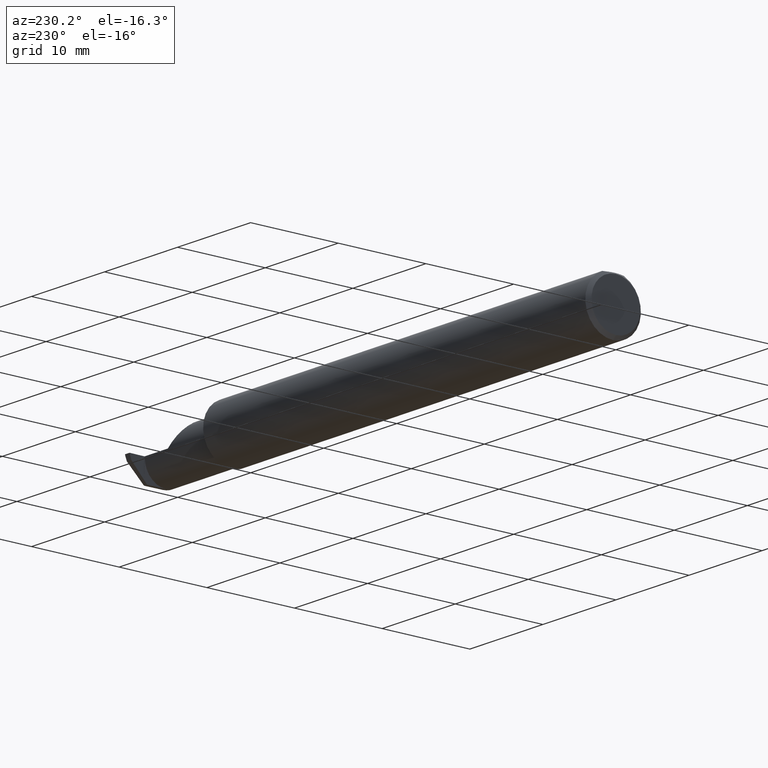
[diagram: clean part render]
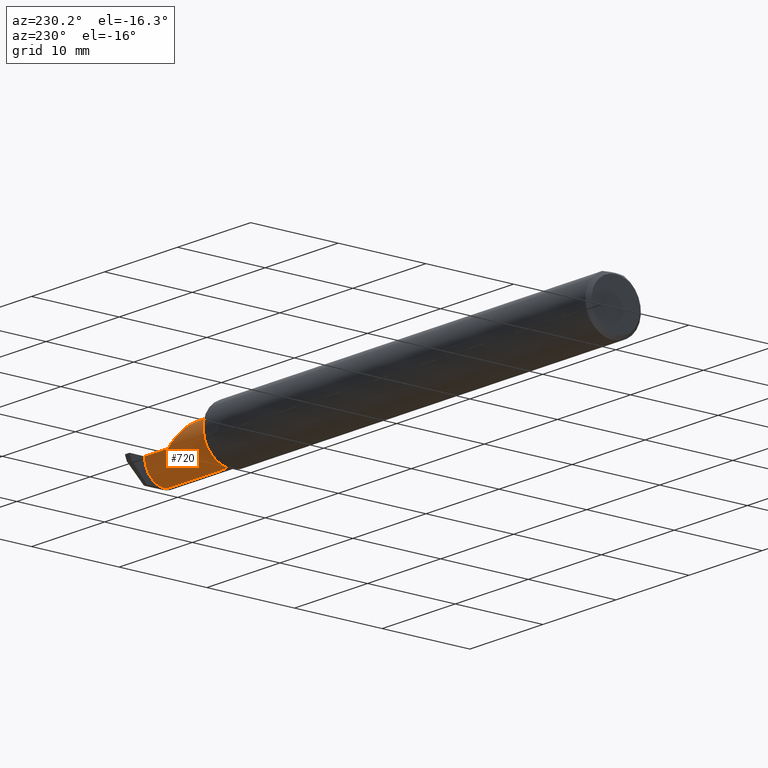
[diagram: same view with one face highlighted and labeled with its STEP entity id]
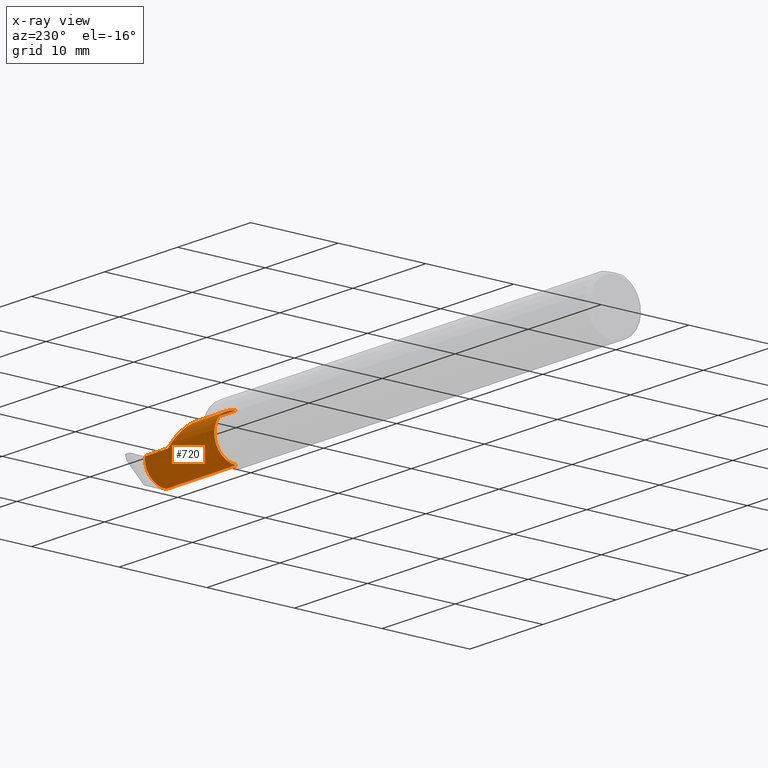
[diagram: x-ray of the same camera — body ghosted, the highlighted face saturated]
A machine part, auxiliary view. The second image highlights one B-rep face of the part: STEP entity #720.
The next image is the same camera in x-ray: the body ghosted, the highlighted face saturated — about 1% of this face is hidden behind the body in this view.
In plain terms, the highlighted cylindrical surface (edge-blend (fillet) strip) has radius 2.4892 mm, axis along (-1, -0, -0).
Its self-contained STEP definition (entity closure, byte-faithful):
#12 = CARTESIAN_POINT ( 'NONE',  ( 2.075000000000000178, -0.04385000000000001397, 0.09800000000000000377 ) ) ;
#17 = DIRECTION ( 'NONE',  ( 0.000000000000000000, 0.000000000000000000, 1.000000000000000000 ) ) ;
#21 = CARTESIAN_POINT ( 'NONE',  ( 2.075000000000000178, 0.05414999999999998981, 5.204748896376247001E-17 ) ) ;
#31 = CARTESIAN_POINT ( 'NONE',  ( 2.479353376795600639, -0.04385000000000004172, -0.09799999999999998990 ) ) ;
#38 = EDGE_CURVE ( 'NONE', #586, #433, #462, .T. ) ;
#39 = CARTESIAN_POINT ( 'NONE',  ( 2.100000000000000089, -0.04385000000000001397, 0.09800000000000000377 ) ) ;
#69 = DIRECTION ( 'NONE',  ( 0.000000000000000000, 0.000000000000000000, 1.000000000000000000 ) ) ;
#75 = DIRECTION ( 'NONE',  ( -1.000000000000000000, -0.000000000000000000, -0.000000000000000000 ) ) ;
#101 = VERTEX_POINT ( 'NONE', #466 ) ;
#155 = AXIS2_PLACEMENT_3D ( 'NONE', #548, #535, #415 ) ;
#156 = CARTESIAN_POINT ( 'NONE',  ( 2.252000000000000668, -0.04385000000000001397, 0.09800000000000000377 ) ) ;
#176 = VERTEX_POINT ( 'NONE', #432 ) ;
#186 =( BOUNDED_CURVE ( )  B_SPLINE_CURVE ( 3, ( #426, #474, #247, #308 ),
 .UNSPECIFIED., .F., .F. ) 
 B_SPLINE_CURVE_WITH_KNOTS ( ( 4, 4 ),
 ( 4.463962699426424763, 4.711356644242684411 ),
 .UNSPECIFIED. ) 
 CURVE ( )  GEOMETRIC_REPRESENTATION_ITEM ( )  RATIONAL_B_SPLINE_CURVE ( ( 1.000000000000000000, 0.9949061863229000657, 0.9949061863229000657, 1.000000000000000000 ) ) 
 REPRESENTATION_ITEM ( '' )  );
#195 = DIRECTION ( 'NONE',  ( -1.000000000000000000, -0.000000000000000000, -0.000000000000000000 ) ) ;
#200 = FACE_OUTER_BOUND ( 'NONE', #276, .T. ) ;
#210 = CARTESIAN_POINT ( 'NONE',  ( 2.100000000000000089, -0.04385000000000000009, -0.09800000000000000377 ) ) ;
#217 = CARTESIAN_POINT ( 'NONE',  ( 2.075000000000000178, -0.04385000000000000703, -0.09800000000000000377 ) ) ;
#232 = CARTESIAN_POINT ( 'NONE',  ( 2.479354867654528061, 0.002850604310161268268, -0.09800000000000001765 ) ) ;
#244 = CARTESIAN_POINT ( 'NONE',  ( 2.479353376795600639, -0.04385000000000004172, -0.09799999999999998990 ) ) ;
#247 = CARTESIAN_POINT ( 'NONE',  ( 2.474831655309489342, 0.05414656493488107653, -0.008143655253979704967 ) ) ;
#258 = VERTEX_POINT ( 'NONE', #552 ) ;
#268 = DIRECTION ( 'NONE',  ( -1.000000000000000000, -0.000000000000000000, -0.000000000000000000 ) ) ;
#273 = DIRECTION ( 'NONE',  ( 1.000000000000000000, 0.000000000000000000, 0.000000000000000000 ) ) ;
#276 = EDGE_LOOP ( 'NONE', ( #553, #317, #609, #512, #763, #306, #752, #347 ) ) ;
#306 = ORIENTED_EDGE ( 'NONE', *, *, #424, .T. ) ;
#308 = CARTESIAN_POINT ( 'NONE',  ( 2.474499999999999922, 0.05414999123725582758, -4.144270477499261866E-05 ) ) ;
#317 = ORIENTED_EDGE ( 'NONE', *, *, #38, .T. ) ;
#325 =( BOUNDED_CURVE ( )  B_SPLINE_CURVE ( 3, ( #156, #349, #401, #407 ),
 .UNSPECIFIED., .F., .T. ) 
 B_SPLINE_CURVE_WITH_KNOTS ( ( 4, 4 ),
 ( 0.000000000000000000, 1.570796326794896558 ),
 .UNSPECIFIED. ) 
 CURVE ( )  GEOMETRIC_REPRESENTATION_ITEM ( )  RATIONAL_B_SPLINE_CURVE ( ( 1.000000000000000000, 0.8047378541243649375, 0.8047378541243649375, 1.000000000000000000 ) ) 
 REPRESENTATION_ITEM ( '' )  );
#347 = ORIENTED_EDGE ( 'NONE', *, *, #610, .F. ) ;
#349 = CARTESIAN_POINT ( 'NONE',  ( 2.252000000000000668, 0.01355707088743670317, 0.09799999999999996214 ) ) ;
#354 = AXIS2_PLACEMENT_3D ( 'NONE', #685, #268, #69 ) ;
#361 = CARTESIAN_POINT ( 'NONE',  ( 2.252000000000000668, -0.04385000000000001397, 0.09800000000000000377 ) ) ;
#366 = EDGE_CURVE ( 'NONE', #651, #521, #508, .T. ) ;
#401 = CARTESIAN_POINT ( 'NONE',  ( 2.292592929112563738, 0.05415000000000004532, 0.05740707088743669112 ) ) ;
#404 = CIRCLE ( 'NONE', #155, 0.09800000000000000377 ) ;
#407 = CARTESIAN_POINT ( 'NONE',  ( 2.350000000000000089, 0.05414999999999988572, 1.836970198721028825E-17 ) ) ;
#415 = DIRECTION ( 'NONE',  ( 0.000000000000000000, 0.000000000000000000, 1.000000000000000000 ) ) ;
#424 = EDGE_CURVE ( 'NONE', #176, #258, #627, .T. ) ;
#426 = CARTESIAN_POINT ( 'NONE',  ( 2.475482208140546536, 0.05115612325138245431, -0.02403823089877875005 ) ) ;
#432 = CARTESIAN_POINT ( 'NONE',  ( 2.350000000000000089, 0.05414999999999988572, 1.836970198721028825E-17 ) ) ;
#433 = VERTEX_POINT ( 'NONE', #210 ) ;
#439 = CARTESIAN_POINT ( 'NONE',  ( 2.474499999999999922, -0.04385000000000001397, 0.000000000000000000 ) ) ;
#460 = EDGE_CURVE ( 'NONE', #651, #176, #325, .T. ) ;
#462 = LINE ( 'NONE', #217, #533 ) ;
#466 = CARTESIAN_POINT ( 'NONE',  ( 2.475482208140546536, 0.05115612325138245431, -0.02403823089877875005 ) ) ;
#467 = VECTOR ( 'NONE', #75, 39.37007874015748143 ) ;
#474 = CARTESIAN_POINT ( 'NONE',  ( 2.475160734290017484, 0.05314349951121608018, -0.01618353831829628942 ) ) ;
#495 = CYLINDRICAL_SURFACE ( 'NONE', #354, 0.09800000000000000377 ) ;
#508 = LINE ( 'NONE', #12, #467 ) ;
#509 = AXIS2_PLACEMENT_3D ( 'NONE', #439, #195, #17 ) ;
#510 =( BOUNDED_CURVE ( )  B_SPLINE_CURVE ( 3, ( #31, #232, #542, #599 ),
 .UNSPECIFIED., .F., .T. ) 
 B_SPLINE_CURVE_WITH_KNOTS ( ( 4, 4 ),
 ( 3.140983202202990654, 4.463962699426421210 ),
 .UNSPECIFIED. ) 
 CURVE ( )  GEOMETRIC_REPRESENTATION_ITEM ( )  RATIONAL_B_SPLINE_CURVE ( ( 1.000000000000000000, 0.8593853101475603662, 0.8593853101475603662, 1.000000000000000000 ) ) 
 REPRESENTATION_ITEM ( '' )  );
#512 = ORIENTED_EDGE ( 'NONE', *, *, #366, .F. ) ;
#521 = VERTEX_POINT ( 'NONE', #39 ) ;
#533 = VECTOR ( 'NONE', #633, 39.37007874015748143 ) ;
#535 = DIRECTION ( 'NONE',  ( -1.000000000000000000, -0.000000000000000000, -0.000000000000000000 ) ) ;
#542 = CARTESIAN_POINT ( 'NONE',  ( 2.477853341463135184, 0.03970102213383034512, -0.06931214282740397192 ) ) ;
#548 = CARTESIAN_POINT ( 'NONE',  ( 2.100000000000000089, -0.04385000000000001397, 0.000000000000000000 ) ) ;
#552 = CARTESIAN_POINT ( 'NONE',  ( 2.474499999999999922, 0.05415000000000000369, 5.204759737726171490E-17 ) ) ;
#553 = ORIENTED_EDGE ( 'NONE', *, *, #574, .F. ) ;
#554 = CARTESIAN_POINT ( 'NONE',  ( 2.474499999999999922, 0.05414999123725582758, -4.144270477499261866E-05 ) ) ;
#574 = EDGE_CURVE ( 'NONE', #586, #101, #510, .T. ) ;
#582 = VECTOR ( 'NONE', #273, 39.37007874015748143 ) ;
#586 = VERTEX_POINT ( 'NONE', #244 ) ;
#599 = CARTESIAN_POINT ( 'NONE',  ( 2.475482208140546536, 0.05115612325138245431, -0.02403823089877875005 ) ) ;
#609 = ORIENTED_EDGE ( 'NONE', *, *, #612, .F. ) ;
#610 = EDGE_CURVE ( 'NONE', #101, #701, #186, .T. ) ;
#612 = EDGE_CURVE ( 'NONE', #521, #433, #404, .T. ) ;
#627 = LINE ( 'NONE', #21, #582 ) ;
#633 = DIRECTION ( 'NONE',  ( -1.000000000000000000, -0.000000000000000000, -0.000000000000000000 ) ) ;
#651 = VERTEX_POINT ( 'NONE', #361 ) ;
#685 = CARTESIAN_POINT ( 'NONE',  ( 2.075000000000000178, -0.04385000000000001397, 0.000000000000000000 ) ) ;
#690 = EDGE_CURVE ( 'NONE', #258, #701, #746, .T. ) ;
#701 = VERTEX_POINT ( 'NONE', #554 ) ;
#720 = ADVANCED_FACE ( 'NONE', ( #200 ), #495, .T. ) ;
#746 = CIRCLE ( 'NONE', #509, 0.09800000000000000377 ) ;
#752 = ORIENTED_EDGE ( 'NONE', *, *, #690, .T. ) ;
#763 = ORIENTED_EDGE ( 'NONE', *, *, #460, .T. ) ;